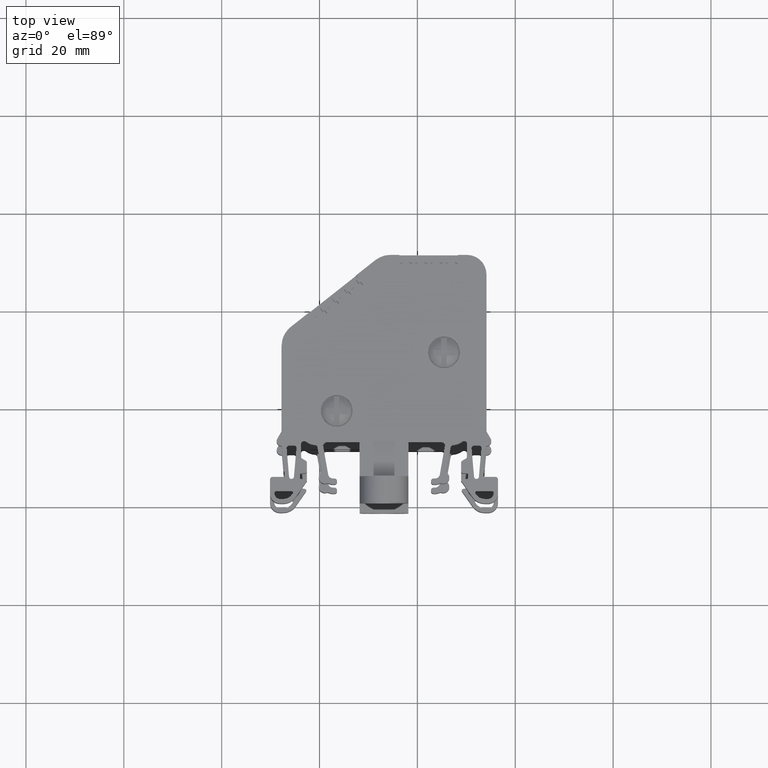
[diagram: clean part render]
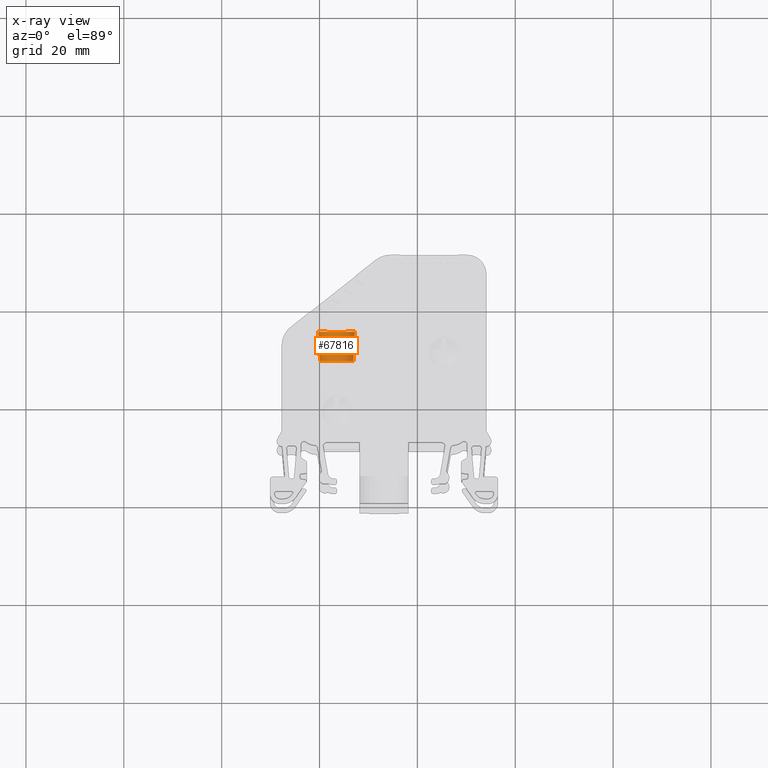
[diagram: x-ray — body ghosted, one internal face saturated and labeled with its STEP entity id]
A machine part, top view, then the same camera in x-ray: the body is ghosted and one INTERNAL B-rep face — a face not visible from any outside direction — is saturated and labeled: STEP entity #67816.
In plain terms, the highlighted conical surface has half-angle 3 deg.
Its self-contained STEP definition (entity closure, byte-faithful):
#13141 = ORIENTED_EDGE ( 'NONE', *, *, #66416, .T. ) ;
#13148 = ORIENTED_EDGE ( 'NONE', *, *, #66358, .F. ) ;
#14989 = VECTOR ( 'NONE', #77580, 1000.000000000000100 ) ;
#15019 = VECTOR ( 'NONE', #77541, 1000.000000000000100 ) ;
#35980 = AXIS2_PLACEMENT_3D ( 'NONE', #100279, #100326, #100298 ) ;
#35982 = CONICAL_SURFACE ( 'NONE', #35980, 3.719999999999945600, 0.05235987756015277700 ) ;
#45488 = CARTESIAN_POINT ( 'NONE',  ( -53.09712487159834600, 29.53127427673630800, -26.73018049456740600 ) ) ;
#45495 = CARTESIAN_POINT ( 'NONE',  ( -52.78163004031409100, 35.55127427672318400, -26.73018049456731800 ) ) ;
#45666 = CARTESIAN_POINT ( 'NONE',  ( -60.22163004031266800, 35.55127427672329100, -26.73018049456731400 ) ) ;
#45681 = CARTESIAN_POINT ( 'NONE',  ( -59.90613520902761700, 29.53127427671368500, -26.73018049456739900 ) ) ;
#53969 = VERTEX_POINT ( 'NONE', #45666 ) ;
#53986 = VERTEX_POINT ( 'NONE', #45681 ) ;
#55818 = VERTEX_POINT ( 'NONE', #45488 ) ;
#55858 = VERTEX_POINT ( 'NONE', #45495 ) ;
#57672 = ORIENTED_EDGE ( 'NONE', *, *, #66357, .T. ) ;
#57765 = ORIENTED_EDGE ( 'NONE', *, *, #66323, .F. ) ;
#66323 = EDGE_CURVE ( 'NONE', #55858, #53969, #83430, .T. ) ;
#66357 = EDGE_CURVE ( 'NONE', #53986, #53969, #77363, .T. ) ;
#66358 = EDGE_CURVE ( 'NONE', #55818, #55858, #77420, .T. ) ;
#66416 = EDGE_CURVE ( 'NONE', #55818, #53986, #83457, .T. ) ;
#67816 = ADVANCED_FACE ( 'NONE', ( #100196 ), #35982, .T. ) ;
#77027 = CARTESIAN_POINT ( 'NONE',  ( -53.31796270161422800, 35.55127427673831200, -28.65859843403275400 ) ) ;
#77031 = CARTESIAN_POINT ( 'NONE',  ( -59.54350800120473500, 35.55127427673844000, -28.87247600052691300 ) ) ;
#77034 = CARTESIAN_POINT ( 'NONE',  ( -53.69015265096528800, 35.55127427673832600, -29.17947415983976700 ) ) ;
#77036 = CARTESIAN_POINT ( 'NONE',  ( -54.10395507514451900, 35.55127427673834700, -29.57951659569459600 ) ) ;
#77038 = CARTESIAN_POINT ( 'NONE',  ( -53.00104789024615600, 35.55127427673829700, -27.98928887527144500 ) ) ;
#77041 = CARTESIAN_POINT ( 'NONE',  ( -55.57143014989003400, 35.55127427673839700, -30.36298511339267100 ) ) ;
#77043 = CARTESIAN_POINT ( 'NONE',  ( -57.67735301562920800, 35.55127427673842500, -30.26046215434724800 ) ) ;
#77045 = CARTESIAN_POINT ( 'NONE',  ( -53.52809481251196600, 35.55127427673833300, -28.98020546341402300 ) ) ;
#77047 = CARTESIAN_POINT ( 'NONE',  ( -53.03128737173029400, 35.55127427673830500, -28.07034618631333000 ) ) ;
#77049 = CARTESIAN_POINT ( 'NONE',  ( -55.01607230057716400, 35.55127427673837600, -30.14081845164815500 ) ) ;
#77051 = CARTESIAN_POINT ( 'NONE',  ( -56.02925258887613300, 35.55127427673840400, -30.45004800852116500 ) ) ;
#77057 = CARTESIAN_POINT ( 'NONE',  ( -52.97150065847480200, 35.55127427673830500, -27.90628840483787000 ) ) ;
#77059 = CARTESIAN_POINT ( 'NONE',  ( -56.73781876603175100, 35.55127427673840400, -30.45024673759037300 ) ) ;
#77061 = CARTESIAN_POINT ( 'NONE',  ( -57.76050667446312300, 35.55127427673842500, -30.23085432217073500 ) ) ;
#77063 = CARTESIAN_POINT ( 'NONE',  ( -57.81581791567863600, 35.55127427673842500, -30.21043455650572400 ) ) ;
#77067 = CARTESIAN_POINT ( 'NONE',  ( -52.78163004031409100, 35.55127427672318400, -26.73018049456731800 ) ) ;
#77069 = CARTESIAN_POINT ( 'NONE',  ( -58.32345044695445300, 35.55127427673842500, -29.97598301704147200 ) ) ;
#77071 = CARTESIAN_POINT ( 'NONE',  ( -52.78176269092940500, 35.55127427673827600, -26.96687199247164600 ) ) ;
#77073 = CARTESIAN_POINT ( 'NONE',  ( -59.46799737245783700, 35.55127427673844700, -28.97592019555229500 ) ) ;
#77075 = CARTESIAN_POINT ( 'NONE',  ( -59.58094269463340700, 35.55127427673844700, -28.81824844385091600 ) ) ;
#77077 = CARTESIAN_POINT ( 'NONE',  ( -57.08612435026695000, 35.55127427673842500, -30.41764797985172200 ) ) ;
#77079 = CARTESIAN_POINT ( 'NONE',  ( -54.25589033933847100, 35.55127427673835400, -29.69654782671792900 ) ) ;
#77081 = CARTESIAN_POINT ( 'NONE',  ( -58.75165500916148900, 35.55127427673844700, -29.70371572236269500 ) ) ;
#77083 = CARTESIAN_POINT ( 'NONE',  ( -59.22263904669334500, 35.55127427673845400, -29.27009763892155200 ) ) ;
#77085 = CARTESIAN_POINT ( 'NONE',  ( -59.68387463687391700, 35.55127427673844700, -28.66090544377867400 ) ) ;
#77087 = CARTESIAN_POINT ( 'NONE',  ( -58.95092370559554200, 35.55127427673845400, -29.54165788390114100 ) ) ;
#77091 = CARTESIAN_POINT ( 'NONE',  ( -59.77848925527153100, 35.55127427673844700, -28.49894544836474400 ) ) ;
#77093 = CARTESIAN_POINT ( 'NONE',  ( -53.25582751640546800, 35.55127427673831200, -28.55200089900722900 ) ) ;
#77095 = CARTESIAN_POINT ( 'NONE',  ( -54.73286514202634800, 35.55127427673836100, -30.00703974583938200 ) ) ;
#77097 = CARTESIAN_POINT ( 'NONE',  ( -54.57090512282223200, 35.55127427673835400, -29.91242511187849100 ) ) ;
#77102 = CARTESIAN_POINT ( 'NONE',  ( -52.81451061889507100, 35.55127427673827600, -27.31555465584612500 ) ) ;
#77104 = CARTESIAN_POINT ( 'NONE',  ( -53.14076445699920700, 35.55127427673830500, -28.32989824466638100 ) ) ;
#77106 = CARTESIAN_POINT ( 'NONE',  ( -57.48202023260837700, 35.55127427673841800, -30.32239438184509700 ) ) ;
#77110 = CARTESIAN_POINT ( 'NONE',  ( -53.02142414792804500, 35.55127427673830500, -28.04449013507127500 ) ) ;
#77112 = CARTESIAN_POINT ( 'NONE',  ( -55.07390644993814300, 35.55127427673838300, -30.16542554679664800 ) ) ;
#77114 = CARTESIAN_POINT ( 'NONE',  ( -55.10487319392134300, 35.55127427673838300, -30.17811846583980500 ) ) ;
#77118 = CARTESIAN_POINT ( 'NONE',  ( -54.35933453436019400, 35.55127427673835400, -29.77205845546245700 ) ) ;
#77120 = CARTESIAN_POINT ( 'NONE',  ( -58.10134779261355900, 35.55127427673842500, -30.09104607644774600 ) ) ;
#77122 = CARTESIAN_POINT ( 'NONE',  ( -54.92989819797962500, 35.55127427673836800, -30.10286814149963800 ) ) ;
#77126 = CARTESIAN_POINT ( 'NONE',  ( -52.90967720093491500, 35.55127427673829700, -27.71123057535621100 ) ) ;
#77128 = CARTESIAN_POINT ( 'NONE',  ( -58.43004797977835800, 35.55127427673844000, -29.91384783326991200 ) ) ;
#77130 = CARTESIAN_POINT ( 'NONE',  ( -53.08893831488554600, 35.55127427673830500, -28.21607932543320600 ) ) ;
#77134 = CARTESIAN_POINT ( 'NONE',  ( -57.84179573169259200, 35.55127427673843200, -30.20052316338973600 ) ) ;
#77136 = CARTESIAN_POINT ( 'NONE',  ( -53.96171289596656400, 35.55127427673833300, -29.45118950095168500 ) ) ;
#77146 = CARTESIAN_POINT ( 'NONE',  ( -54.41356207516973600, 35.55127427673835400, -29.80949313851145600 ) ) ;
#77148 = CARTESIAN_POINT ( 'NONE',  ( -57.98752887264668500, 35.55127427673843200, -30.14287221903943600 ) ) ;
#77149 = CARTESIAN_POINT ( 'NONE',  ( -59.35096614143272800, 35.55127427673843200, -29.12785545974898200 ) ) ;
#77153 = CARTESIAN_POINT ( 'NONE',  ( -59.87431766001034800, 35.55127427673844700, -28.30191237853381000 ) ) ;
#77160 = CARTESIAN_POINT ( 'NONE',  ( -59.94957630714877400, 35.55127427673844000, -28.12691640021267500 ) ) ;
#77172 = CARTESIAN_POINT ( 'NONE',  ( -59.93687508281600900, 35.55127427673844000, -28.15790409981135100 ) ) ;
#77177 = CARTESIAN_POINT ( 'NONE',  ( -59.91226797988589700, 35.55127427673844000, -28.21573826106743300 ) ) ;
#77182 = CARTESIAN_POINT ( 'NONE',  ( -60.13430193013812900, 35.55127427673842500, -27.66071543693600900 ) ) ;
#77195 = CARTESIAN_POINT ( 'NONE',  ( -60.22136443681998900, 35.55127427673843200, -27.20427799707924900 ) ) ;
#77230 = CARTESIAN_POINT ( 'NONE',  ( -60.22163004031266800, 35.55127427672329100, -26.73018049456731400 ) ) ;
#77363 = LINE ( 'NONE', #77576, #14989 ) ;
#77420 = LINE ( 'NONE', #77523, #15019 ) ;
#77523 = CARTESIAN_POINT ( 'NONE',  ( -52.78163004031366500, 35.55127427671308000, -26.73018049456732500 ) ) ;
#77541 = DIRECTION ( 'NONE',  ( 0.05233595624328677600, 0.9986295347545559600, 1.583968009194841800E-014 ) ) ;
#77576 = CARTESIAN_POINT ( 'NONE',  ( -60.22163004031355600, 35.55127427671322900, -26.73018049456732500 ) ) ;
#77580 = DIRECTION ( 'NONE',  ( -0.05233595624324578100, 0.9986295347545579600, 1.583327078581905600E-014 ) ) ;
#77946 = CARTESIAN_POINT ( 'NONE',  ( -53.09712487159834600, 29.53127427673630800, -26.73018049456740600 ) ) ;
#77962 = CARTESIAN_POINT ( 'NONE',  ( -57.39275206551520400, 29.53127427673508300, -30.04607550647212100 ) ) ;
#77966 = CARTESIAN_POINT ( 'NONE',  ( -58.59385752488533000, 29.53127427673509700, -29.45265039276220900 ) ) ;
#77968 = CARTESIAN_POINT ( 'NONE',  ( -59.47644031581882700, 29.53127427673510000, -28.44475391630325600 ) ) ;
#77970 = CARTESIAN_POINT ( 'NONE',  ( -53.77916014211894000, 29.53127427673498700, -28.82240797913901200 ) ) ;
#77976 = CARTESIAN_POINT ( 'NONE',  ( -58.21620346204955600, 29.53127427673509300, -29.70499077007251600 ) ) ;
#77978 = CARTESIAN_POINT ( 'NONE',  ( -54.78705661857791400, 29.53127427673502600, -29.70499077007250200 ) ) ;
#77984 = CARTESIAN_POINT ( 'NONE',  ( -53.52681976480862900, 29.53127427673497600, -28.44475391630324200 ) ) ;
#78009 = CARTESIAN_POINT ( 'NONE',  ( -59.81752505221843600, 29.53127427673509300, -27.62130251976887900 ) ) ;
#78023 = CARTESIAN_POINT ( 'NONE',  ( -56.94727872477806600, 29.53127427673507600, -30.13468566328265700 ) ) ;
#78031 = CARTESIAN_POINT ( 'NONE',  ( -53.09712487159850300, 29.53127427673494400, -27.17582917903176200 ) ) ;
#78034 = CARTESIAN_POINT ( 'NONE',  ( -56.05598135584939700, 29.53127427673505800, -30.13468566328266400 ) ) ;
#78040 = CARTESIAN_POINT ( 'NONE',  ( -54.40940255574214700, 29.53127427673500800, -29.45265039276221900 ) ) ;
#78046 = CARTESIAN_POINT ( 'NONE',  ( -59.90613520902898200, 29.53127427673509000, -27.17582917903176600 ) ) ;
#78055 = CARTESIAN_POINT ( 'NONE',  ( -53.18573502840904200, 29.53127427673496200, -27.62130251976886800 ) ) ;
#78059 = CARTESIAN_POINT ( 'NONE',  ( -55.61050801511228100, 29.53127427673504700, -30.04607550647211100 ) ) ;
#78067 = CARTESIAN_POINT ( 'NONE',  ( -59.22409993850852300, 29.53127427673509300, -28.82240797913901200 ) ) ;
#78069 = CARTESIAN_POINT ( 'NONE',  ( -59.90613520902761700, 29.53127427671368500, -26.73018049456739900 ) ) ;
#81081 = EDGE_LOOP ( 'NONE', ( #13148, #13141, #57672, #57765 ) ) ;
#83430 = B_SPLINE_CURVE_WITH_KNOTS ( 'NONE', 3,
 ( #77067, #77071, #77102, #77126, #77057, #77038, #77110, #77047, #77130, #77104, #77093, #77027, #77045, #77034, #77136, #77036, #77079, #77118, #77146, #77097, #77095, #77122, #77049, #77112, #77114, #77041, #77051, #77059, #77077, #77106, #77043, #77061, #77063, #77134, #77148, #77120, #77069, #77128, #77081, #77087, #77083, #77149, #77073, #77031, #77075, #77085, #77091, #77153, #77177, #77172, #77160, #77182, #77195, #77230 ),
 .UNSPECIFIED., .F., .F.,
 ( 4, 1, 1, 1, 2, 2, 2, 2, 2, 1, 2, 2, 1, 1, 2, 2, 2, 1, 1, 1, 2, 2, 2, 2, 2, 1, 2, 2, 1, 1, 2, 2, 4 ),
 ( 0.0000000000000000000, 0.06250000000000963100, 0.09375000000001444700, 0.1093750000000173100, 0.1171875000000187200, 0.1250000000000201500, 0.1562500000000266700, 0.1875000000000331700, 0.2500000000000452400, 0.2812500000000512900, 0.2968750000000540100, 0.3125000000000567900, 0.3437500000000637300, 0.3593750000000666700, 0.3671875000000672800, 0.3750000000000679500, 0.5000000000000611700, 0.5625000000000587300, 0.5937500000000575100, 0.6093750000000561800, 0.6171875000000555100, 0.6250000000000547300, 0.6562500000000491800, 0.6875000000000435200, 0.7500000000000319700, 0.7812500000000258700, 0.7968750000000232000, 0.8125000000000205400, 0.8437500000000151000, 0.8593750000000127700, 0.8671875000000112100, 0.8750000000000095500, 1.000000000000000000 ),
 .UNSPECIFIED. ) ;
#83457 = B_SPLINE_CURVE_WITH_KNOTS ( 'NONE', 3,
 ( #77946, #78031, #78055, #77984, #77970, #78040, #77978, #78059, #78034, #78023, #77962, #77976, #77966, #78067, #77968, #78009, #78046, #78069 ),
 .UNSPECIFIED., .F., .F.,
 ( 4, 2, 2, 2, 2, 2, 2, 2, 4 ),
 ( 0.0000000000000000000, 0.1250000000000000000, 0.2500000000000000000, 0.3750000000000000000, 0.5000000000000000000, 0.6250000000000000000, 0.7500000000000000000, 0.8750000000000000000, 1.000000000000000000 ),
 .UNSPECIFIED. ) ;
#100196 = FACE_OUTER_BOUND ( 'NONE', #81081, .T. ) ;
#100279 = CARTESIAN_POINT ( 'NONE',  ( -56.50163004031361400, 35.55127427671315100, -26.73018049456732500 ) ) ;
#100298 = DIRECTION ( 'NONE',  ( -1.000000000000000000, 2.051823466209156700E-014, 0.0000000000000000000 ) ) ;
#100326 = DIRECTION ( 'NONE',  ( 2.051823466209154400E-014, 1.000000000000000000, 1.585499951161624400E-014 ) ) ;